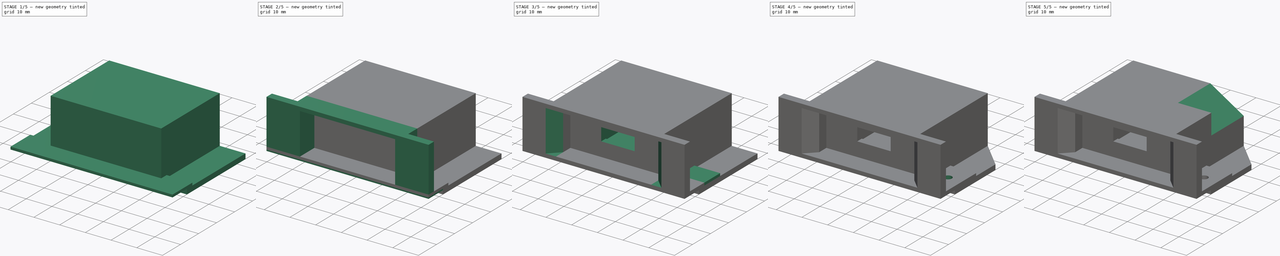
[diagram: build sequence overview — one tinted view per stage of 5, left to right]
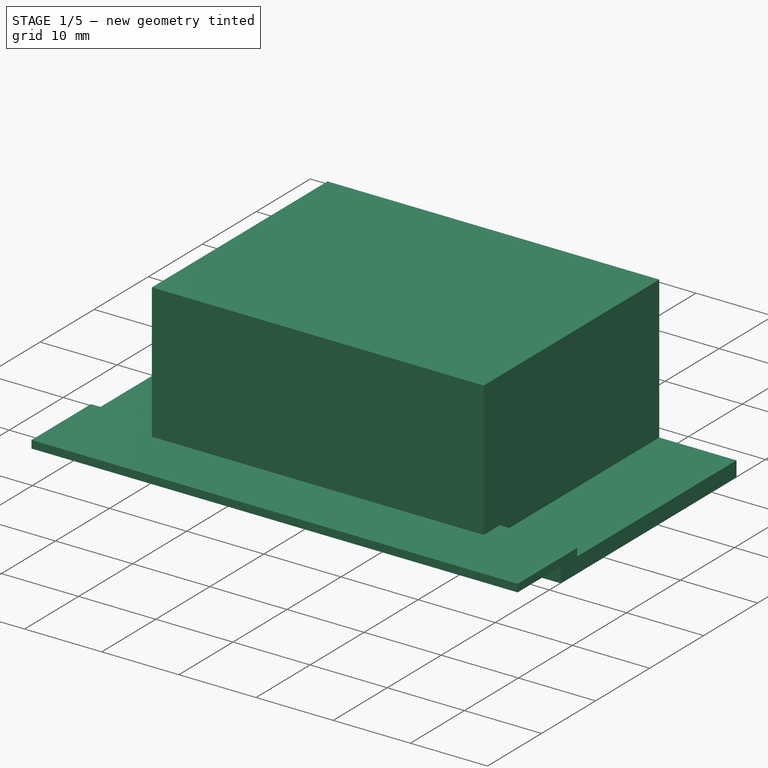
[diagram: stage 1 of 5 — iso view after this stage's code; geometry added in this stage tinted green]
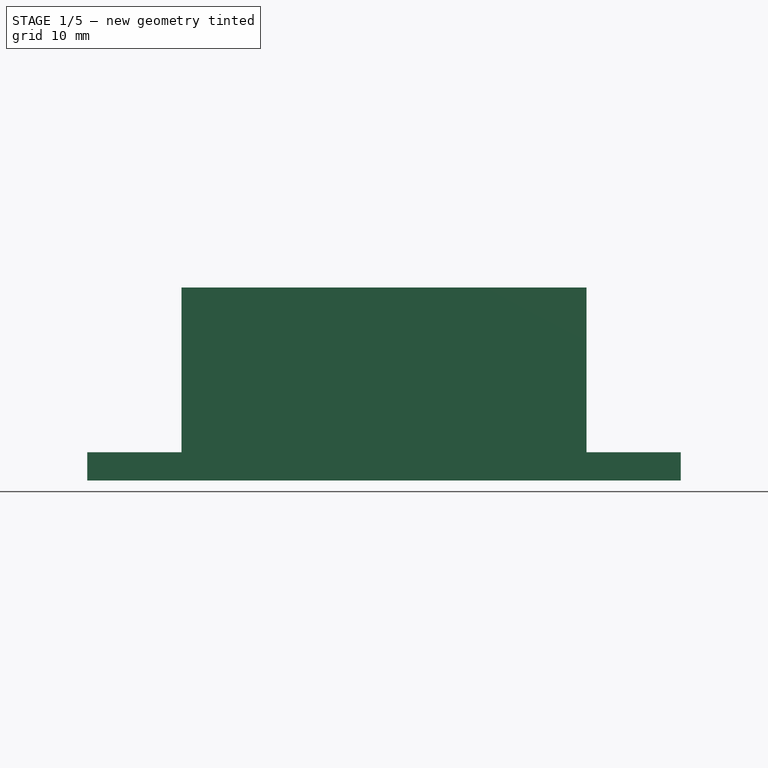
[diagram: stage 1 of 5 — front view after this stage's code; geometry added in this stage tinted green]
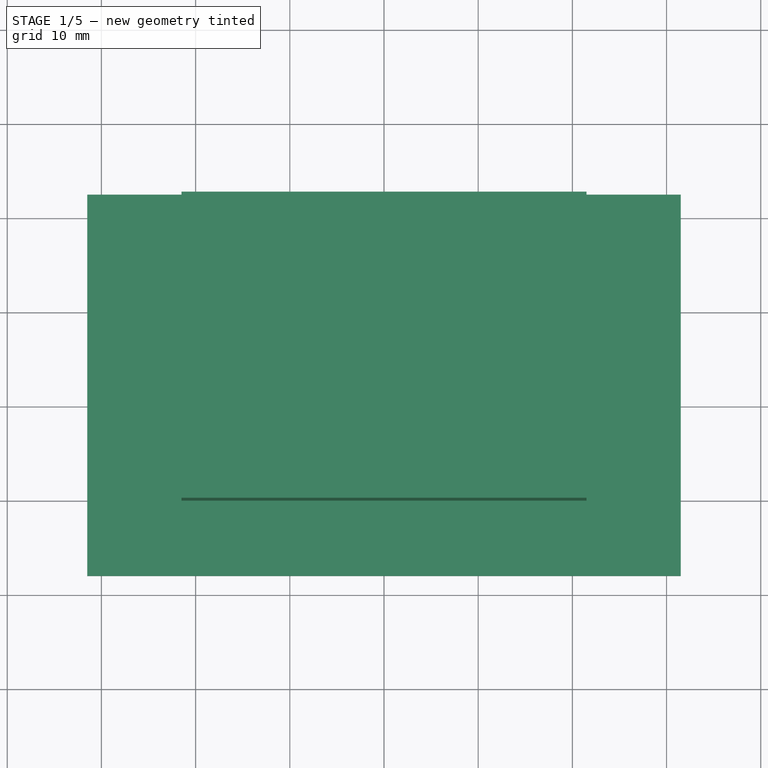
[diagram: stage 1 of 5 — top view after this stage's code; geometry added in this stage tinted green]
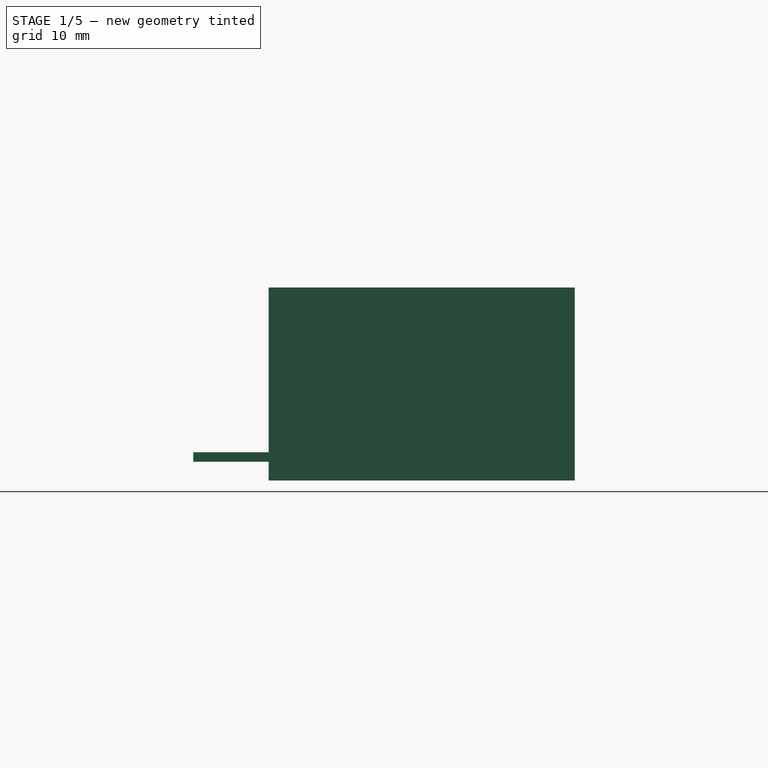
[diagram: stage 1 of 5 — right view after this stage's code; geometry added in this stage tinted green]
FCSTD DOCUMENT  (FreeCAD 0.16R6706 (Git))
Label: PS USB Jeux
License: All rights reserved
LicenseURL: http://en.wikipedia.org/wiki/All_rights_reserved
objects: Sketcher::SketchObject×12, PartDesign::Pad×7, PartDesign::Pocket×5, PartDesign::Chamfer×3, PartDesign::Fillet×1
note: 40 computed .brp shape members not serialized (recipe doc carries the construction recipe); baked Part::Feature solids carry a one-line shape summary decoded from their .brp

FEATURE [Sketcher::SketchObject] Sketch
  sketch-geometry (4):
    g0: LineSegment StartX=-31.5 StartY=32.5 StartZ=0 EndX=31.5 EndY=32.5 EndZ=0
    g1: LineSegment StartX=31.5 StartY=32.5 StartZ=0 EndX=31.5 EndY=0 EndZ=0
    g2: LineSegment StartX=31.5 StartY=0 StartZ=0 EndX=-31.5 EndY=0 EndZ=0
    g3: LineSegment StartX=-31.5 StartY=0 StartZ=0 EndX=-31.5 EndY=32.5 EndZ=0
  constraints (12):
    c: Coincident(g0,g1)
    c: Coincident(g1,g2)
    c: Coincident(g2,g3)
    c: Coincident(g3,g0)
    c: Horizontal(g0)
    c: Horizontal(g2)
    c: Vertical(g1)
    c: Vertical(g3)
    c: DistanceX(g0,g0) = 63
    c: DistanceX(g0,g-1) = 31.5
    c: DistanceY(g1,g1) = 32.5
    c: DistanceY(g1,g-1) = 0
FEATURE [PartDesign::Pad] Pad
  Length = 2
  Length2 = 100
  Sketch = -> Sketch
  Type = 0
FEATURE [Sketcher::SketchObject] Sketch001
  ExternalGeometry = -> [Pad]
  Placement = pos=(0,0,2) rot=(0,0,1;0rad)
  Support = -> Pad [Face6]
  sketch-geometry (4):
    g0: LineSegment StartX=-21.5 StartY=32.5 StartZ=0 EndX=21.5 EndY=32.5 EndZ=0
    g1: LineSegment StartX=21.5 StartY=32.5 StartZ=0 EndX=21.5 EndY=0 EndZ=0
    g2: LineSegment StartX=21.5 StartY=0 StartZ=0 EndX=-21.5 EndY=0 EndZ=0
    g3: LineSegment StartX=-21.5 StartY=0 StartZ=0 EndX=-21.5 EndY=32.5 EndZ=0
  constraints (12):
    c: Coincident(g0,g1)
    c: Coincident(g1,g2)
    c: Coincident(g2,g3)
    c: Coincident(g3,g0)
    c: Horizontal(g0)
    c: Horizontal(g2)
    c: Vertical(g1)
    c: Vertical(g3)
    c: PointOnObject(g0,g-3)
    c: PointOnObject(g1,g-4)
    c: DistanceX(g0,g0) = 43
    c: DistanceX(g0,g-1) = 21.5
FEATURE [PartDesign::Pad] Pad001
  Length = 18.5
  Length2 = 100
  Sketch = -> Sketch001
  Type = 0
FEATURE [Sketcher::SketchObject] Sketch002
  ExternalGeometry = -> [Pad001]
  Placement = pos=(0,0,2) rot=(0,0,1;0rad)
  Support = -> Pad001 [Face5]
  sketch-geometry (5):
    g0: LineSegment [constr] StartX=31.5 StartY=32.5 StartZ=0 EndX=31.5 EndY=-10.8553 EndZ=0
    g1: LineSegment StartX=-31.5 StartY=3 StartZ=0 EndX=31.5 EndY=3 EndZ=0
    g2: LineSegment StartX=31.5 StartY=3 StartZ=0 EndX=31.5 EndY=-8 EndZ=0
    g3: LineSegment StartX=31.5 StartY=-8 StartZ=0 EndX=-31.5 EndY=-8 EndZ=0
    g4: LineSegment StartX=-31.5 StartY=-8 StartZ=0 EndX=-31.5 EndY=3 EndZ=0
  constraints (14):
    c: Coincident(g0,g-4)
    c: Vertical(g0)
    c: Coincident(g1,g2)
    c: Coincident(g2,g3)
    c: Coincident(g3,g4)
    c: Coincident(g4,g1)
    c: Horizontal(g1)
    c: Horizontal(g3)
    c: Vertical(g2)
    c: Vertical(g4)
    c: PointOnObject(g1,g-3)
    c: PointOnObject(g2,g0)
    c: DistanceY(g-3,g1) = 3
    c: DistanceY(g2,g1) = 11
FEATURE [PartDesign::Pad] Pad002
  Length = 1
  Length2 = 100
  Sketch = -> Sketch002
  Type = 0
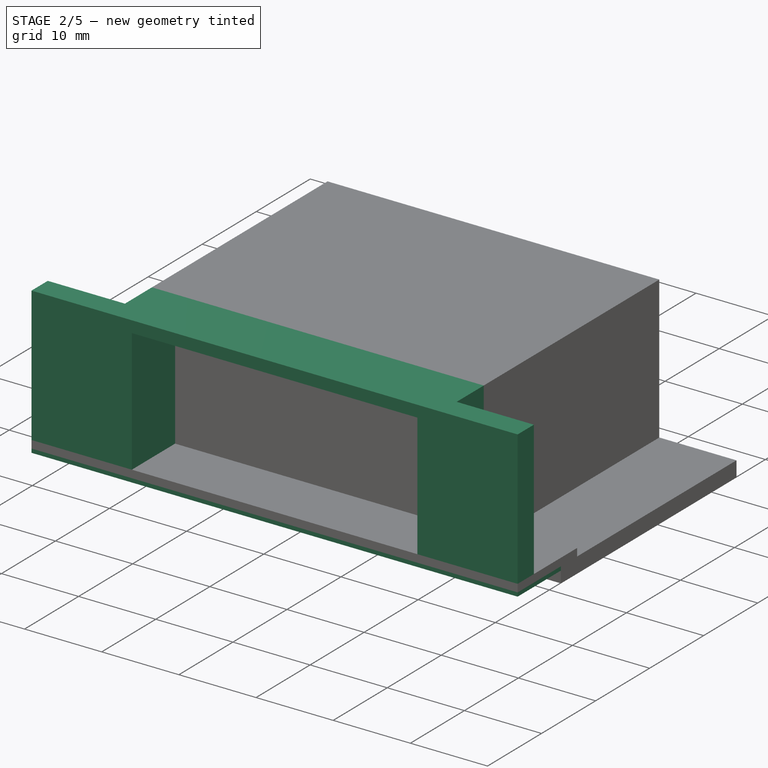
[diagram: stage 2 of 5 — iso view after this stage's code; geometry added in this stage tinted green]
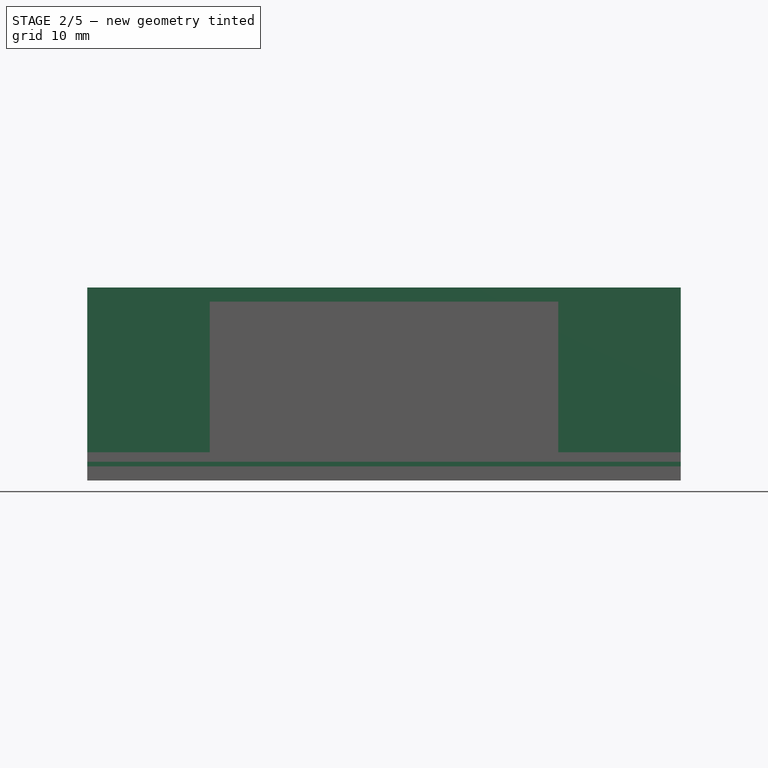
[diagram: stage 2 of 5 — front view after this stage's code; geometry added in this stage tinted green]
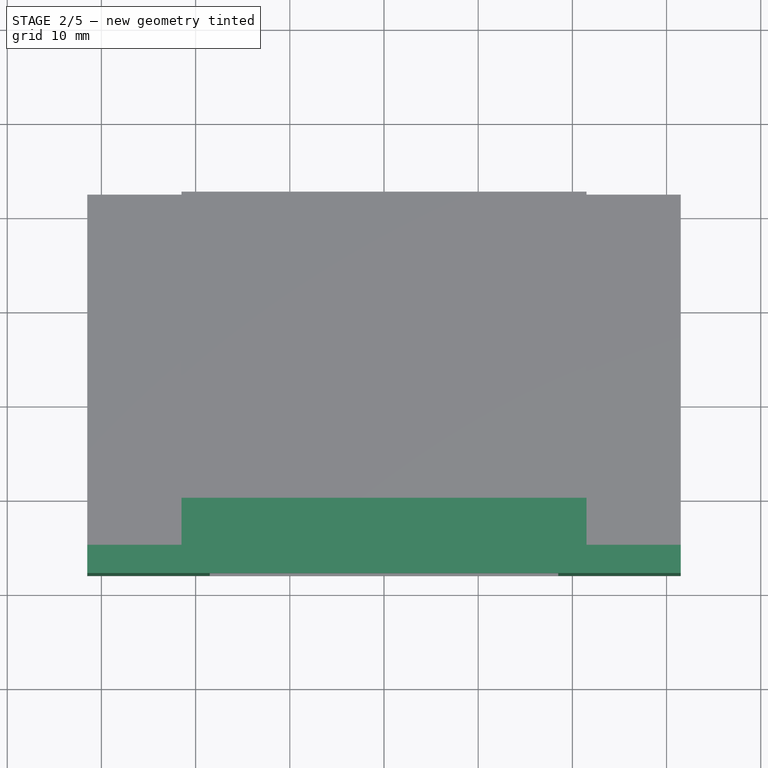
[diagram: stage 2 of 5 — top view after this stage's code; geometry added in this stage tinted green]
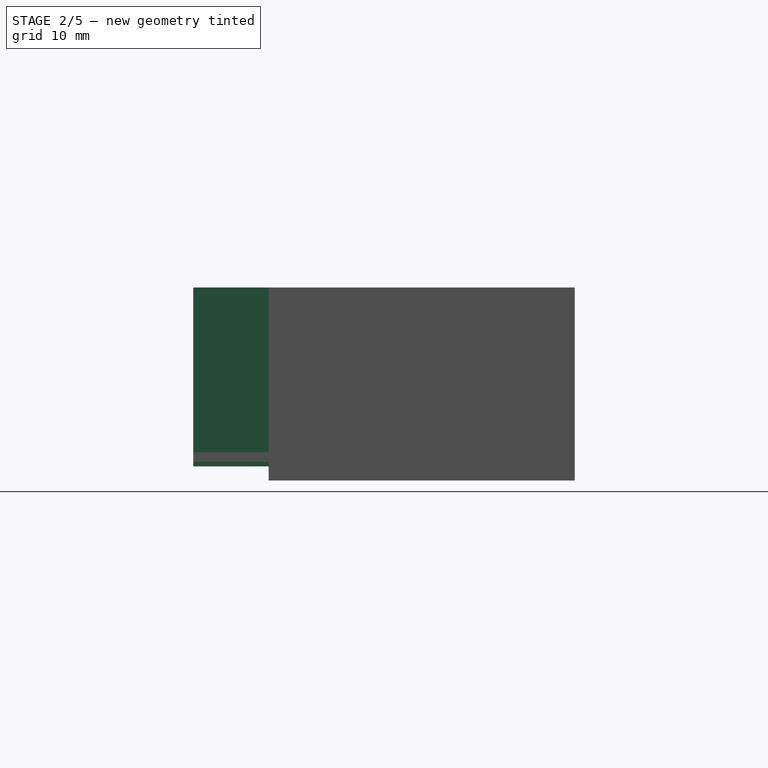
[diagram: stage 2 of 5 — right view after this stage's code; geometry added in this stage tinted green]
FEATURE [Sketcher::SketchObject] Sketch003
  ExternalGeometry = -> [Pad002]
  Placement = pos=(0,0,2) rot=(1,0,0;3.14159rad)
  Support = -> Pad002 [Face10]
  sketch-geometry (4):
    g0: LineSegment StartX=-31.5 StartY=8 StartZ=0 EndX=31.5 EndY=8 EndZ=0
    g1: LineSegment StartX=31.5 StartY=8 StartZ=0 EndX=31.5 EndY=0 EndZ=0
    g2: LineSegment StartX=31.5 StartY=0 StartZ=0 EndX=-31.5 EndY=0 EndZ=0
    g3: LineSegment StartX=-31.5 StartY=0 StartZ=0 EndX=-31.5 EndY=8 EndZ=0
  constraints (10):
    c: Coincident(g0,g1)
    c: Coincident(g1,g2)
    c: Coincident(g2,g3)
    c: Coincident(g3,g0)
    c: Horizontal(g0)
    c: Horizontal(g2)
    c: Vertical(g1)
    c: Vertical(g3)
    c: Coincident(g0,g-3)
    c: Coincident(g1,g-4)
FEATURE [PartDesign::Pad] Pad003
  Length = 0.5
  Length2 = 100
  Sketch = -> Sketch003
  Type = 0
FEATURE [Sketcher::SketchObject] Sketch004
  ExternalGeometry = -> [Pad003]
  Placement = pos=(0,0,3) rot=(0,0,1;0rad)
  Support = -> Pad003 [Face19]
  sketch-geometry (16):
    g0: LineSegment [constr] StartX=-21.5 StartY=3 StartZ=0 EndX=-21.5 EndY=-11.099 EndZ=0
    g1: LineSegment [constr] StartX=21.5 StartY=3 StartZ=0 EndX=21.5 EndY=-10.2056 EndZ=0
    g2: LineSegment [constr] StartX=-31.5 StartY=-8 StartZ=0 EndX=31.5 EndY=-8 EndZ=0
    g3: LineSegment StartX=-31.5 StartY=-8 StartZ=0 EndX=-18.5 EndY=-8 EndZ=0
    g4: LineSegment StartX=-18.5 StartY=-8 StartZ=0 EndX=-18.5 EndY=0 EndZ=0
    g5: LineSegment StartX=-18.5 StartY=0 StartZ=0 EndX=18.5 EndY=0 EndZ=0
    g6: LineSegment StartX=18.5 StartY=0 StartZ=0 EndX=18.5 EndY=-8 EndZ=0
    g7: LineSegment StartX=18.5 StartY=-8 StartZ=0 EndX=31.5 EndY=-8 EndZ=0
    g8: LineSegment StartX=31.5 StartY=-8 StartZ=0 EndX=31.5 EndY=-5 EndZ=0
    g9: LineSegment StartX=31.5 StartY=-5 StartZ=0 EndX=21.5 EndY=-5 EndZ=0
    g10: LineSegment StartX=21.5 StartY=-5 StartZ=0 EndX=21.5 EndY=3 EndZ=0
    g11: LineSegment StartX=21.5 StartY=3 StartZ=0 EndX=-21.5 EndY=3 EndZ=0
    g12: LineSegment StartX=-21.5 StartY=3 StartZ=0 EndX=-21.5 EndY=-5 EndZ=0
    g13: LineSegment StartX=-21.5 StartY=-5 StartZ=0 EndX=-31.5 EndY=-5 EndZ=0
    g14: LineSegment StartX=-31.5 StartY=-5 StartZ=0 EndX=-31.5 EndY=-8 EndZ=0
    g15: LineSegment StartX=-31.5 StartY=-8 StartZ=0 EndX=-18.5 EndY=-8 EndZ=0
  constraints (40):
    c: Coincident(g0,g-3)
    c: Vertical(g0)
    c: Coincident(g1,g-9)
    c: Vertical(g1)
    c: Coincident(g2,g-5)
    c: Coincident(g2,g-10)
    c: PointOnObject(g3,g-5)
    c: Horizontal(g3)
    c: Coincident(g3,g4)
    c: PointOnObject(g4,g-6)
    c: Vertical(g4)
    c: Coincident(g4,g5)
    c: PointOnObject(g5,g-6)
    c: Coincident(g5,g6)
    c: PointOnObject(g6,g-5)
    c: Vertical(g6)
    c: Coincident(g6,g7)
    c: Coincident(g7,g2)
    c: Coincident(g7,g8)
    c: PointOnObject(g8,g-10)
    c: Coincident(g8,g9)
    c: PointOnObject(g9,g1)
    c: Horizontal(g9)
    c: Coincident(g9,g10)
    c: Coincident(g10,g1)
    c: Coincident(g10,g11)
    c: Coincident(g11,g0)
    c: Coincident(g11,g12)
    c: PointOnObject(g12,g0)
    c: Coincident(g12,g13)
    c: PointOnObject(g13,g-4)
    c: Horizontal(g13)
    c: Coincident(g13,g14)
    c: Coincident(g14,g2)
    c: Coincident(g14,g15)
    c: Coincident(g15,g3)
    c: DistanceY(g2,g13) = 3
    c: DistanceY(g2,g8) = 3
    c: DistanceX(g6,g-8) = 3
    c: DistanceX(g12,g3) = 3
FEATURE [PartDesign::Pad] Pad004
  Length = 17.5
  Length2 = 100
  Sketch = -> Sketch004
  Type = 0
FEATURE [Sketcher::SketchObject] Sketch005
  ExternalGeometry = -> [Pad004]
  Placement = pos=(0,0,20.5) rot=(0,0,1;0rad)
  Support = -> Pad004 [Face26]
  sketch-geometry (4):
    g0: LineSegment StartX=-18.5 StartY=0 StartZ=0 EndX=18.5 EndY=0 EndZ=0
    g1: LineSegment StartX=18.5 StartY=0 StartZ=0 EndX=18.5 EndY=-8 EndZ=0
    g2: LineSegment StartX=18.5 StartY=-8 StartZ=0 EndX=-18.5 EndY=-8 EndZ=0
    g3: LineSegment StartX=-18.5 StartY=-8 StartZ=0 EndX=-18.5 EndY=0 EndZ=0
  constraints (10):
    c: Coincident(g0,g1)
    c: Coincident(g1,g2)
    c: Coincident(g2,g3)
    c: Coincident(g3,g0)
    c: Horizontal(g0)
    c: Horizontal(g2)
    c: Vertical(g1)
    c: Vertical(g3)
    c: Coincident(g0,g-4)
    c: Coincident(g1,g-5)
FEATURE [PartDesign::Pad] Pad005
  Length = 1.5
  Length2 = 100
  Reversed = true
  Sketch = -> Sketch005
  Type = 0
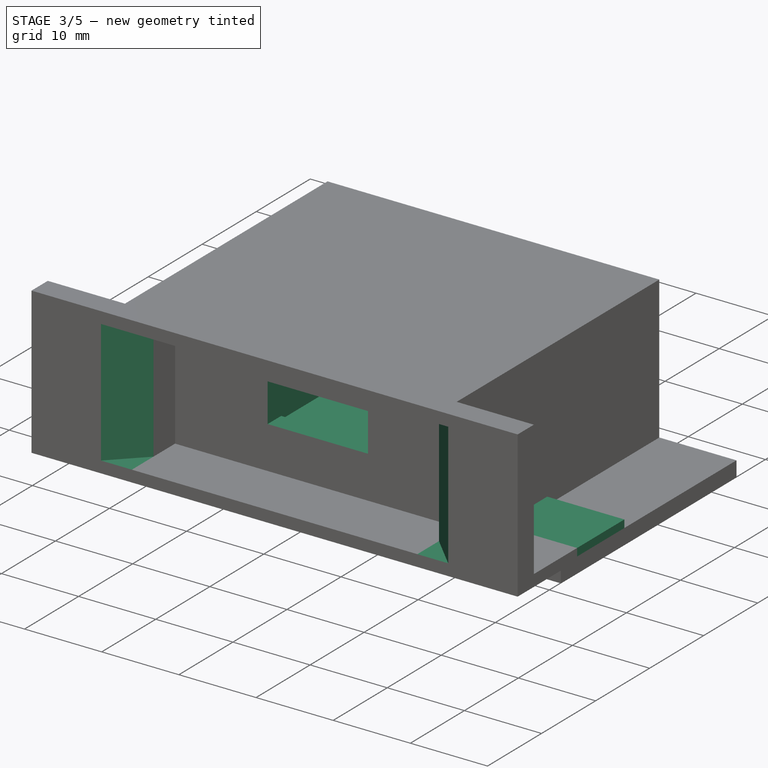
[diagram: stage 3 of 5 — iso view after this stage's code; geometry added in this stage tinted green]
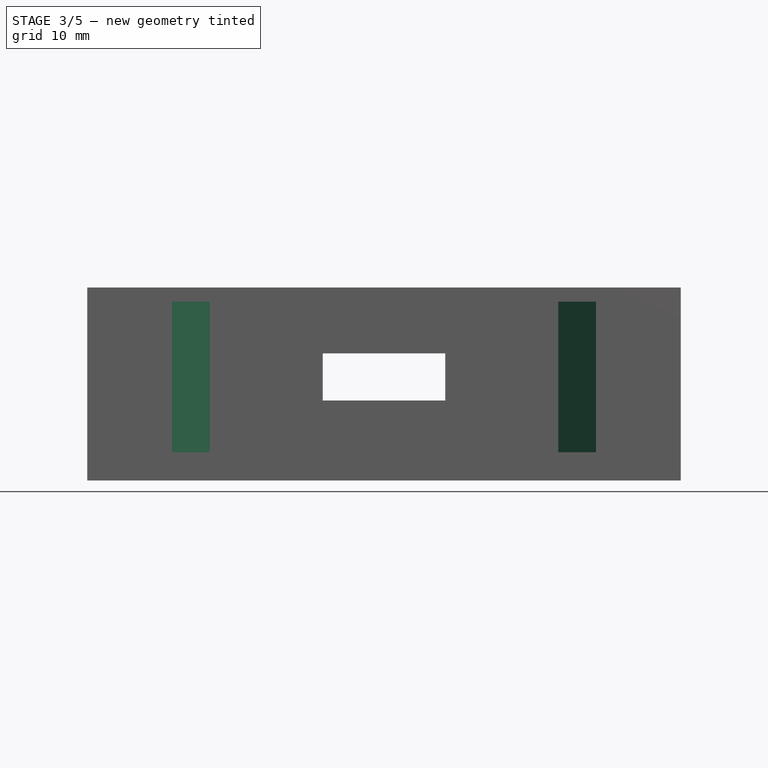
[diagram: stage 3 of 5 — front view after this stage's code; geometry added in this stage tinted green]
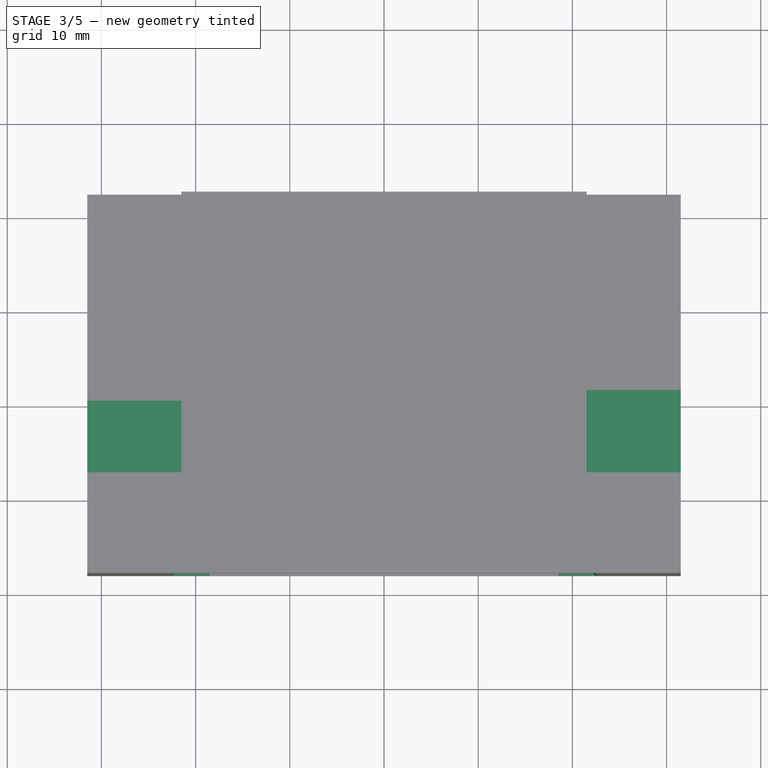
[diagram: stage 3 of 5 — top view after this stage's code; geometry added in this stage tinted green]
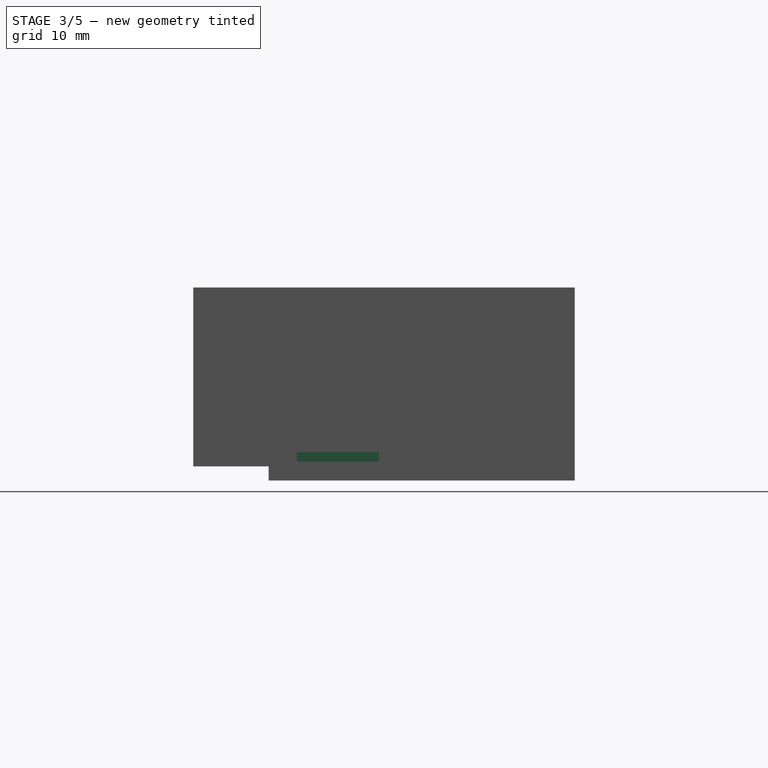
[diagram: stage 3 of 5 — right view after this stage's code; geometry added in this stage tinted green]
FEATURE [PartDesign::Chamfer] Chamfer
  Base = -> Pad005 [Edge84,Edge76]
  Size = 4
FEATURE [Sketcher::SketchObject] Sketch006
  ExternalGeometry = -> [Chamfer]
  Placement = pos=(0,32.5,0) rot=(0,0.707107,0.707107;3.14159rad)
  Support = -> Chamfer [Face44]
  sketch-geometry (4):
    g0: LineSegment StartX=-6.5 StartY=13.5 StartZ=0 EndX=6.5 EndY=13.5 EndZ=0
    g1: LineSegment StartX=6.5 StartY=13.5 StartZ=0 EndX=6.5 EndY=8.5 EndZ=0
    g2: LineSegment StartX=6.5 StartY=8.5 StartZ=0 EndX=-6.5 EndY=8.5 EndZ=0
    g3: LineSegment StartX=-6.5 StartY=8.5 StartZ=0 EndX=-6.5 EndY=13.5 EndZ=0
  constraints (12):
    c: Coincident(g0,g1)
    c: Coincident(g1,g2)
    c: Coincident(g2,g3)
    c: Coincident(g3,g0)
    c: Horizontal(g0)
    c: Horizontal(g2)
    c: Vertical(g1)
    c: Vertical(g3)
    c: DistanceX(g0,g0) = 13
    c: DistanceY(g3,g3) = 5
    c: DistanceY(g0,g-4) = 7
    c: DistanceX(g2,g-1) = 6.5
FEATURE [PartDesign::Pocket] Pocket
  Length = 5
  Sketch = -> Sketch006
  Type = 1
FEATURE [Sketcher::SketchObject] Sketch007
  ExternalGeometry = -> [Pocket]
  Placement = pos=(0,32.5,0) rot=(0,0.707107,0.707107;3.14159rad)
  Support = -> Pocket [Face48]
  sketch-geometry (4):
    g0: LineSegment StartX=-8.75 StartY=15.75 StartZ=0 EndX=8.75 EndY=15.75 EndZ=0
    g1: LineSegment StartX=8.75 StartY=15.75 StartZ=0 EndX=8.75 EndY=6.25 EndZ=0
    g2: LineSegment StartX=8.75 StartY=6.25 StartZ=0 EndX=-8.75 EndY=6.25 EndZ=0
    g3: LineSegment StartX=-8.75 StartY=6.25 StartZ=0 EndX=-8.75 EndY=15.75 EndZ=0
  constraints (12):
    c: Coincident(g0,g1)
    c: Coincident(g1,g2)
    c: Coincident(g2,g3)
    c: Coincident(g3,g0)
    c: Horizontal(g0)
    c: Horizontal(g2)
    c: Vertical(g1)
    c: Vertical(g3)
    c: DistanceX(g0,g0) = 17.5
    c: DistanceY(g3,g3) = 9.5
    c: DistanceY(g0,g-5) = 4.75
    c: DistanceX(g2,g-1) = 8.75
FEATURE [PartDesign::Pocket] Pocket001
  Length = 30
  Sketch = -> Sketch007
  Type = 0
FEATURE [Sketcher::SketchObject] Sketch009
  ExternalGeometry = -> [Pocket001]
  Placement = pos=(0,0,2) rot=(0,0,1;0rad)
  Support = -> Pocket001 [Face36]
  sketch-geometry (8):
    g0: LineSegment StartX=-31.5 StartY=3 StartZ=0 EndX=-21.5 EndY=3 EndZ=0
    g1: LineSegment StartX=-21.5 StartY=3 StartZ=0 EndX=-21.5 EndY=10.6059 EndZ=0
    g2: LineSegment StartX=-21.5 StartY=10.6059 StartZ=0 EndX=-31.5 EndY=10.6059 EndZ=0
    g3: LineSegment StartX=-31.5 StartY=10.6059 StartZ=0 EndX=-31.5 EndY=3 EndZ=0
    g4: LineSegment StartX=31.5 StartY=3 StartZ=0 EndX=21.5 EndY=3 EndZ=0
    g5: LineSegment StartX=21.5 StartY=3 StartZ=0 EndX=21.5 EndY=11.7492 EndZ=0
    g6: LineSegment StartX=21.5 StartY=11.7492 StartZ=0 EndX=31.5 EndY=11.7492 EndZ=0
    g7: LineSegment StartX=31.5 StartY=11.7492 StartZ=0 EndX=31.5 EndY=3 EndZ=0
  constraints (20):
    c: Coincident(g0,g1)
    c: Coincident(g1,g2)
    c: Coincident(g2,g3)
    c: Coincident(g3,g0)
    c: Horizontal(g0)
    c: Horizontal(g2)
    c: Vertical(g1)
    c: Vertical(g3)
    c: Coincident(g0,g-3)
    c: PointOnObject(g1,g-4)
    c: Coincident(g4,g5)
    c: Coincident(g5,g6)
    c: Coincident(g6,g7)
    c: Coincident(g7,g4)
    c: Horizontal(g4)
    c: Horizontal(g6)
    c: Vertical(g5)
    c: Vertical(g7)
    c: Coincident(g4,g-6)
    c: PointOnObject(g5,g-5)
FEATURE [PartDesign::Pad] Pad006
  Length = 1
  Length2 = 100
  Sketch = -> Sketch009
  Type = 0
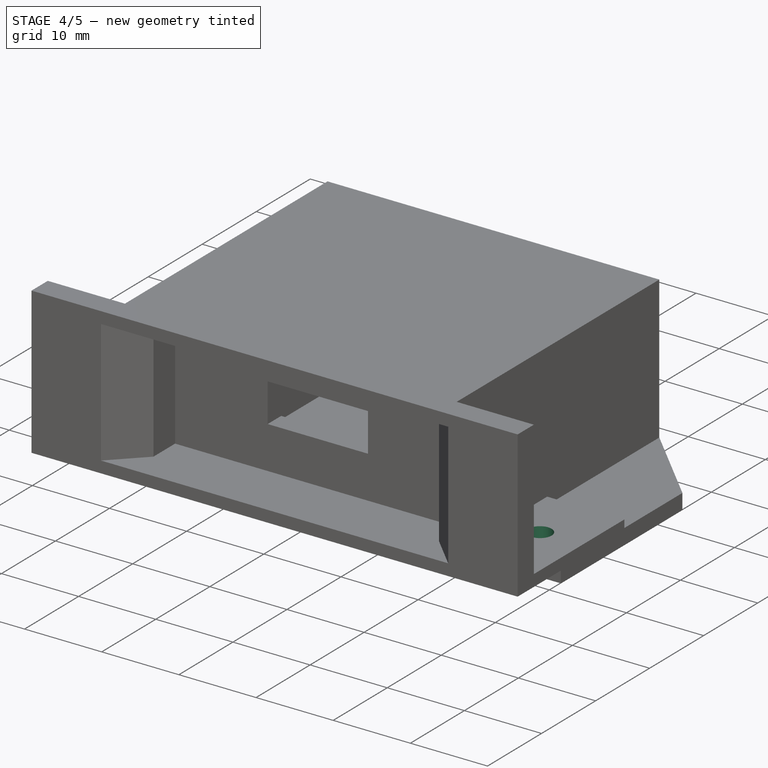
[diagram: stage 4 of 5 — iso view after this stage's code; geometry added in this stage tinted green]
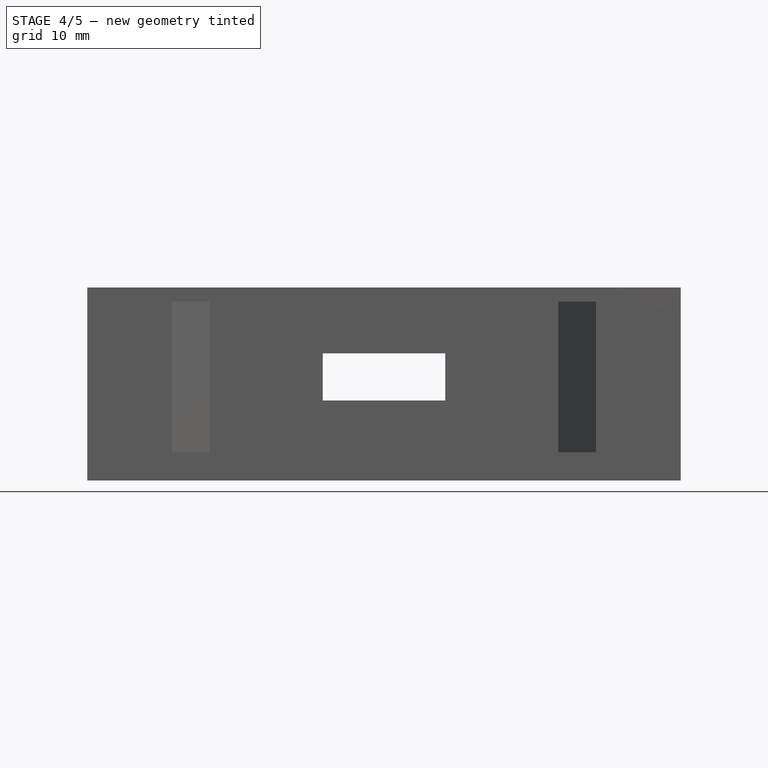
[diagram: stage 4 of 5 — front view after this stage's code; geometry added in this stage tinted green]
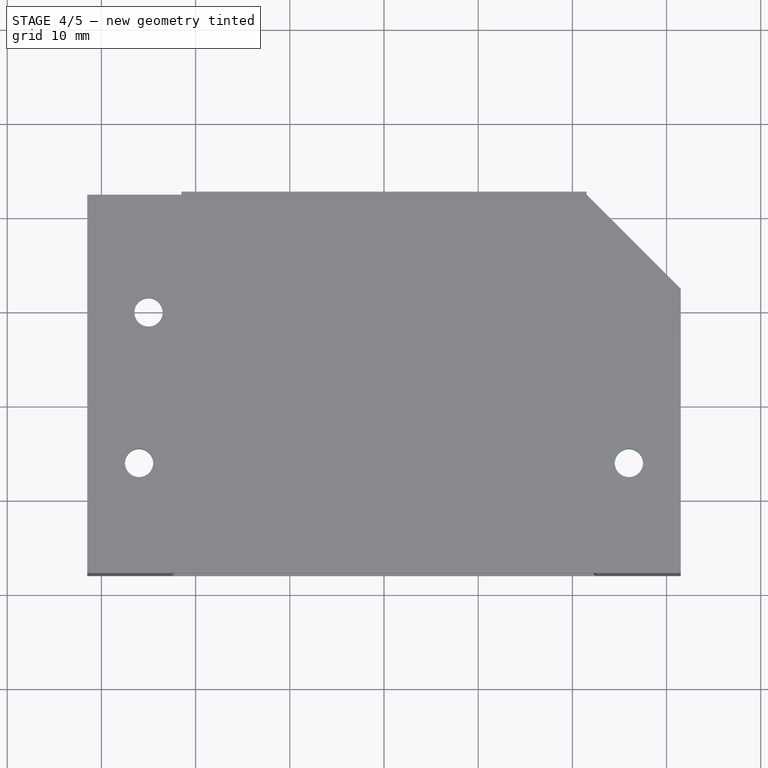
[diagram: stage 4 of 5 — top view after this stage's code; geometry added in this stage tinted green]
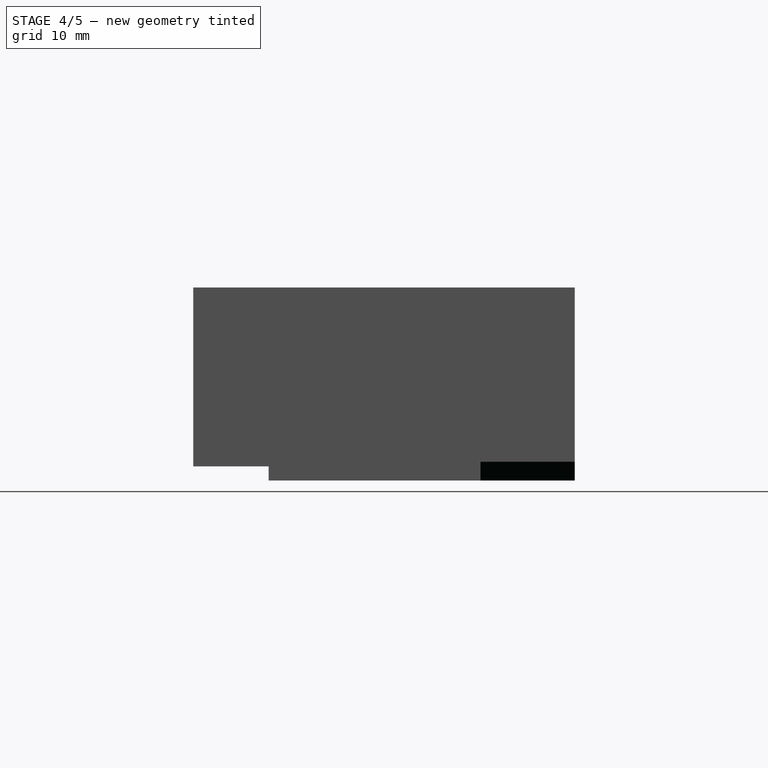
[diagram: stage 4 of 5 — right view after this stage's code; geometry added in this stage tinted green]
FEATURE [Sketcher::SketchObject] Sketch010
  ExternalGeometry = -> [Pad006]
  Placement = pos=(0,0,3) rot=(0,0,1;0rad)
  Support = -> Pad006 [Face45]
  sketch-geometry (3):
    g0: Circle CenterX=-25 CenterY=20 CenterZ=0 NormalX=0 NormalY=0 NormalZ=1 Radius=1.5
    g1: Circle CenterX=-26 CenterY=4 CenterZ=0 NormalX=0 NormalY=0 NormalZ=1 Radius=1.5
    g2: Circle CenterX=26 CenterY=4 CenterZ=0 NormalX=0 NormalY=0 NormalZ=1 Radius=1.5
  constraints (9):
    c: DistanceX(g1,g0) = 1
    c: DistanceX(g1,g2) = 52
    c: Radius(g0) = 1.5
    c: Radius(g1) = 1.5
    c: Radius(g2) = 1.5
    c: DistanceY(g-3,g2) = 12
    c: DistanceY(g-3,g1) = 12
    c: DistanceX(g-1,g2) = 26
    c: DistanceY(g1,g0) = 16
FEATURE [PartDesign::Pocket] Pocket002
  Length = 5
  Sketch = -> Sketch010
  Type = 1
FEATURE [PartDesign::Chamfer] Chamfer001
  Base = -> Pocket002 [Edge61]
  Size = 10
FEATURE [Sketcher::SketchObject] Sketch011
  ExternalGeometry = -> [Chamfer001]
  Placement = pos=(0,0,0) rot=(1,0,0;3.14159rad)
  Support = -> Chamfer001 [Face2]
  sketch-geometry (4):
    g0: LineSegment StartX=-31.5 StartY=-32.5 StartZ=0 EndX=-16.4736 EndY=-32.5 EndZ=0
    g1: LineSegment StartX=-16.4736 StartY=-32.5 StartZ=0 EndX=-16.4736 EndY=-10.1247 EndZ=0
    g2: LineSegment StartX=-16.4736 StartY=-10.1247 StartZ=0 EndX=-31.5 EndY=-10.1247 EndZ=0
    g3: LineSegment StartX=-31.5 StartY=-10.1247 StartZ=0 EndX=-31.5 EndY=-32.5 EndZ=0
  constraints (9):
    c: Coincident(g0,g1)
    c: Coincident(g1,g2)
    c: Coincident(g2,g3)
    c: Coincident(g3,g0)
    c: Horizontal(g0)
    c: Horizontal(g2)
    c: Vertical(g1)
    c: Vertical(g3)
    c: Coincident(g0,g-3)
FEATURE [PartDesign::Pocket] Pocket003
  Length = 0.5
  Sketch = -> Sketch011
  Type = 0
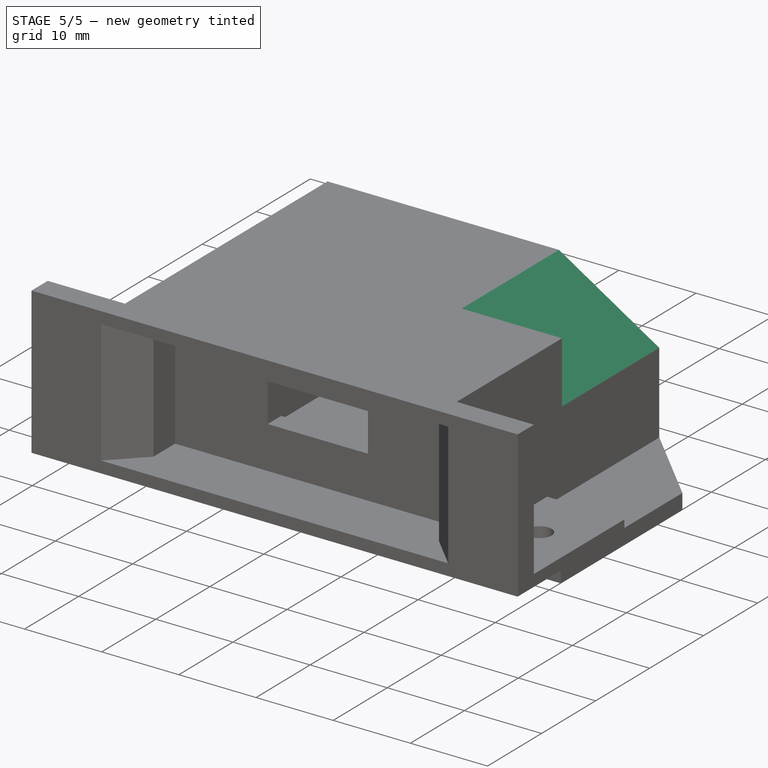
[diagram: stage 5 of 5 — iso view after this stage's code; geometry added in this stage tinted green]
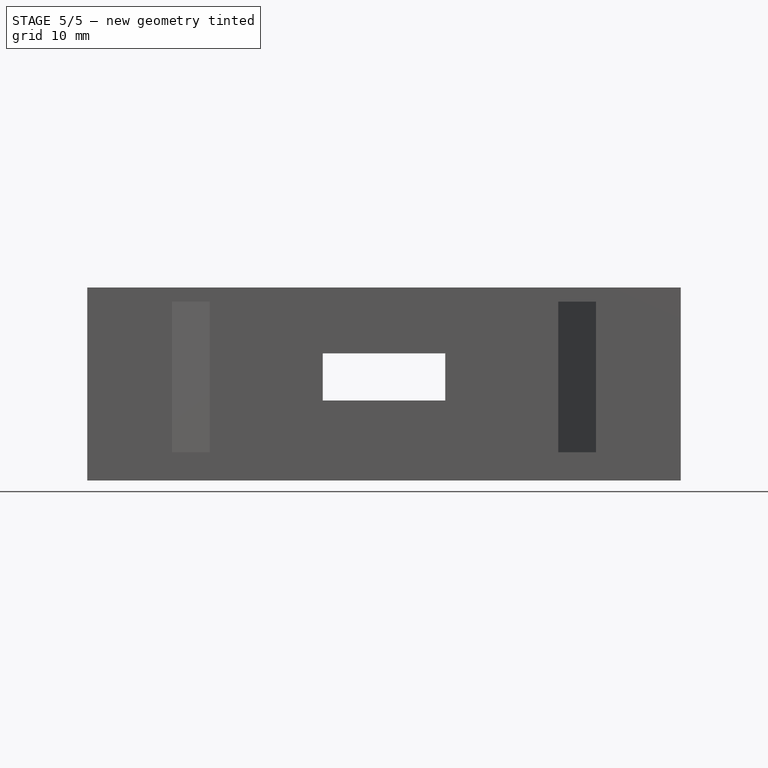
[diagram: stage 5 of 5 — front view after this stage's code; geometry added in this stage tinted green]
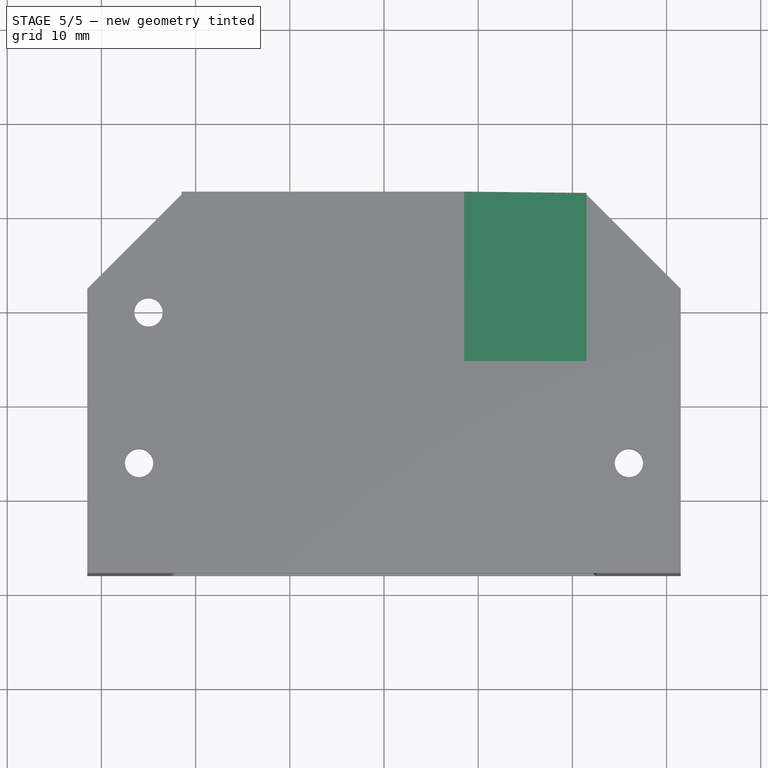
[diagram: stage 5 of 5 — top view after this stage's code; geometry added in this stage tinted green]
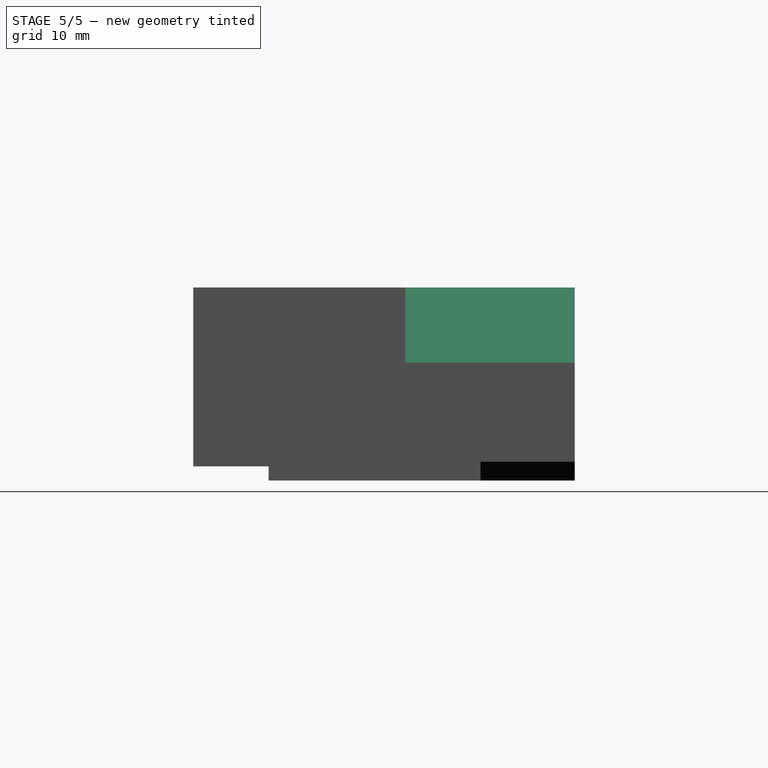
[diagram: stage 5 of 5 — right view after this stage's code; geometry added in this stage tinted green]
FEATURE [PartDesign::Fillet] Fillet
  Base = -> Pocket003 [Edge42]
  Radius = 6
FEATURE [PartDesign::Chamfer] Chamfer002
  Base = -> Fillet [Edge17]
  Size = 10
FEATURE [Sketcher::SketchObject] Sketch012
  ExternalGeometry = -> [Chamfer002]
  Placement = pos=(0,32.5,0) rot=(0,0.707107,0.707107;3.14159rad)
  Support = -> Chamfer002 [Face27]
  sketch-geometry (3):
    g0: LineSegment StartX=-21.5 StartY=20.5 StartZ=0 EndX=-8.5 EndY=20.5 EndZ=0
    g1: LineSegment StartX=-8.5 StartY=20.5 StartZ=0 EndX=-21.5 EndY=12.5 EndZ=0
    g2: LineSegment StartX=-21.5 StartY=12.5 StartZ=0 EndX=-21.5 EndY=20.5 EndZ=0
  constraints (8):
    c: Coincident(g-4,g0)
    c: PointOnObject(g0,g-3)
    c: Coincident(g0,g1)
    c: PointOnObject(g1,g-4)
    c: Coincident(g1,g2)
    c: Coincident(g2,g0)
    c: DistanceX(g0,g0) = 13
    c: DistanceY(g1,g0) = 8
FEATURE [PartDesign::Pocket] Pocket004
  Length = 18
  Sketch = -> Sketch012
  Type = 0
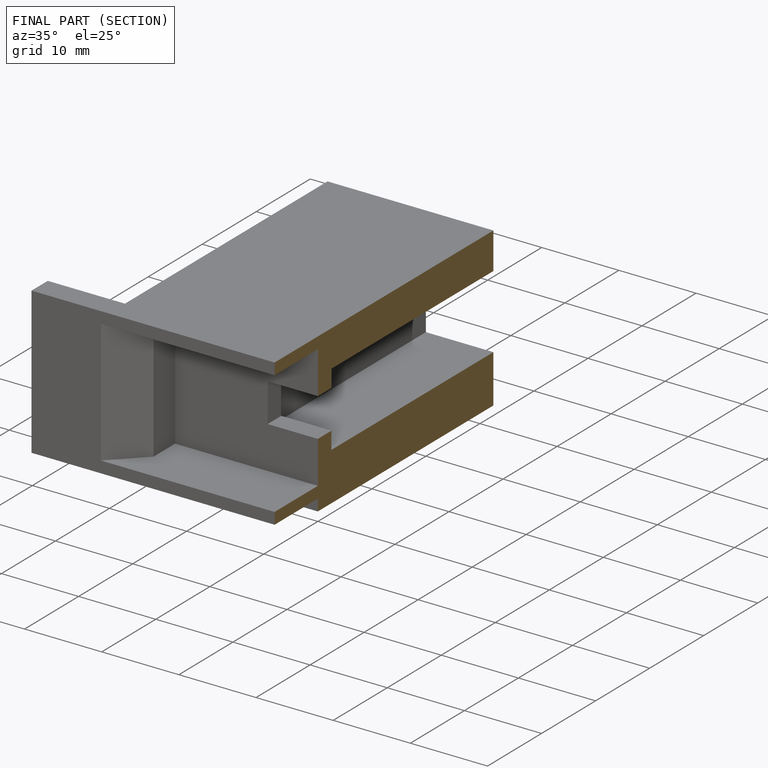
[diagram: finished part — half-section view (interior)]
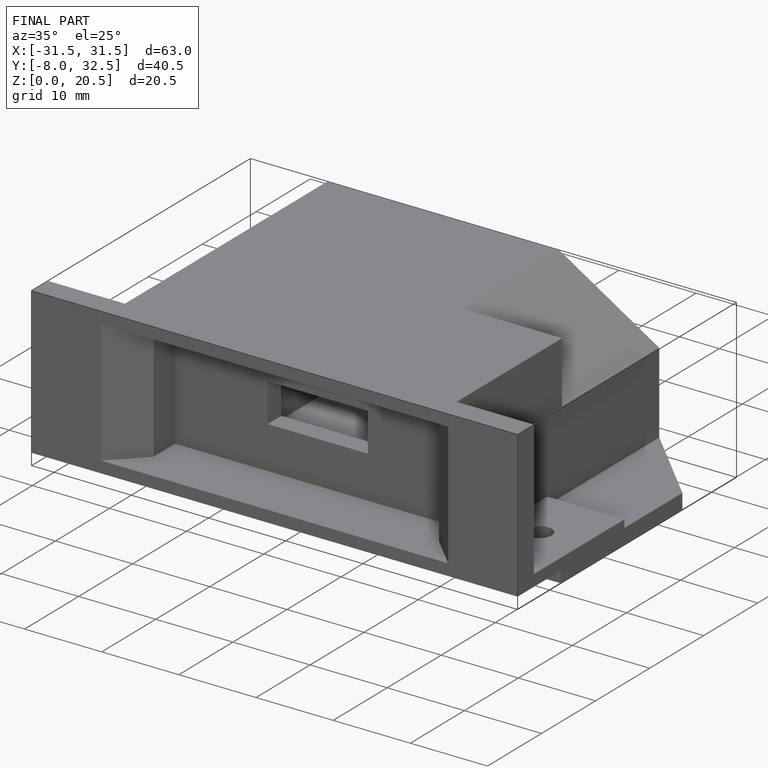
[diagram: finished part — iso view with bounding-box wireframe]
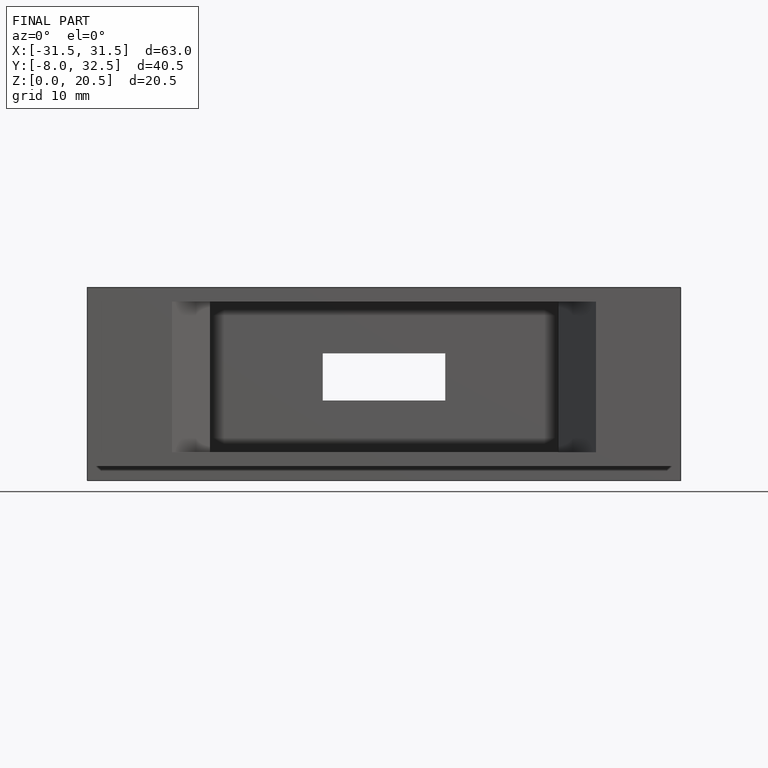
[diagram: finished part — front view with bounding-box wireframe]
